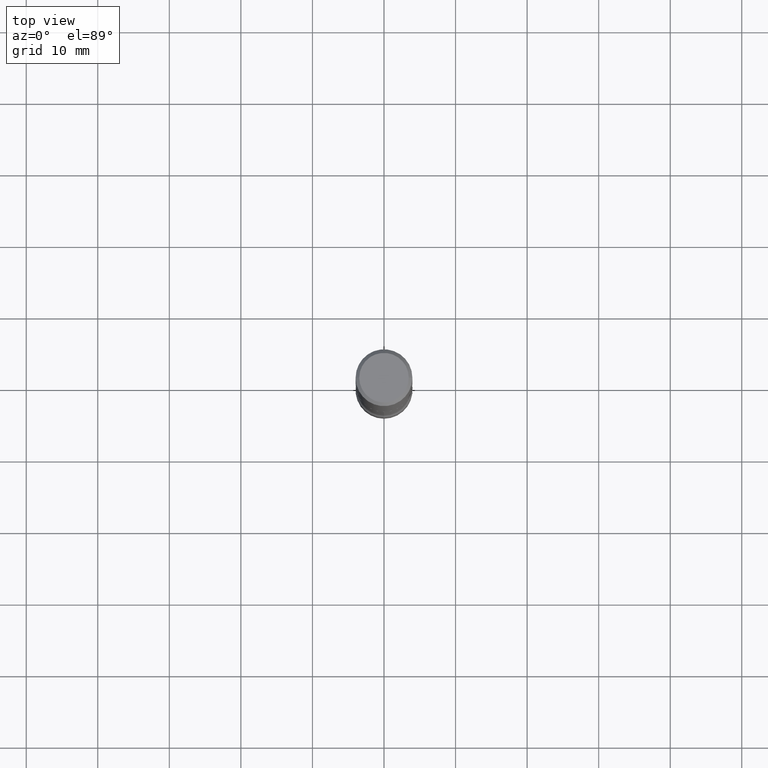
[diagram: clean part render]
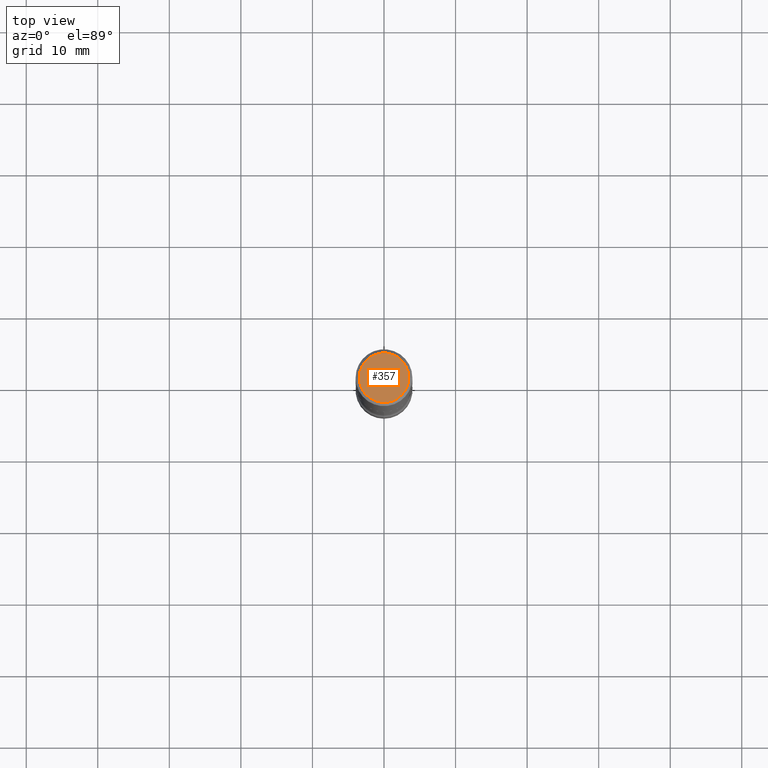
[diagram: same view with one face highlighted and labeled with its STEP entity id]
A machine part, top view. The second image highlights one B-rep face of the part: STEP entity #357.
In plain terms, the highlighted planar face has unit normal (0, -0, -1).
Its self-contained STEP definition (entity closure, byte-faithful):
#22 = ORIENTED_EDGE ( 'NONE', *, *, #151, .T. ) ;
#49 = DIRECTION ( 'NONE',  ( 1.000000000000000000, -6.982962677686266711E-15, 4.876388394912427736E-29 ) ) ;
#56 = DIRECTION ( 'NONE',  ( 1.000000000000000000, -6.982962677686266711E-15, 4.876388394912427736E-29 ) ) ;
#60 = DIRECTION ( 'NONE',  ( -2.445468806185136597E-29, 3.491481338843145583E-15, 1.000000000000000000 ) ) ;
#71 = VERTEX_POINT ( 'NONE', #118 ) ;
#76 = CARTESIAN_POINT ( 'NONE',  ( -0.1362499999999997602, 9.863434782231832402E-16, -1.280553747030800849E-17 ) ) ;
#110 = AXIS2_PLACEMENT_3D ( 'NONE', #247, #60, #49 ) ;
#118 = CARTESIAN_POINT ( 'NONE',  ( 0.1362499999999997602, -1.038262645562516547E-15, -1.280553747029427738E-17 ) ) ;
#137 = EDGE_LOOP ( 'NONE', ( #141, #22 ) ) ;
#138 = CIRCLE ( 'NONE', #110, 0.1362499999999997602 ) ;
#141 = ORIENTED_EDGE ( 'NONE', *, *, #398, .T. ) ;
#151 = EDGE_CURVE ( 'NONE', #71, #176, #138, .T. ) ;
#159 = PLANE ( 'NONE',  #193 ) ;
#176 = VERTEX_POINT ( 'NONE', #76 ) ;
#193 = AXIS2_PLACEMENT_3D ( 'NONE', #365, #287, #399 ) ;
#247 = CARTESIAN_POINT ( 'NONE',  ( 3.131554243005659264E-46, -4.471029511141341874E-32, -1.280553747030123384E-17 ) ) ;
#251 = CARTESIAN_POINT ( 'NONE',  ( 3.131554243005659264E-46, -4.471029511141341874E-32, -1.280553747030123384E-17 ) ) ;
#267 = AXIS2_PLACEMENT_3D ( 'NONE', #251, #405, #56 ) ;
#284 = FACE_OUTER_BOUND ( 'NONE', #137, .T. ) ;
#287 = DIRECTION ( 'NONE',  ( 2.438088387897960049E-29, -3.491481338843145188E-15, -1.000000000000000000 ) ) ;
#357 = ADVANCED_FACE ( 'NONE', ( #284 ), #159, .F. ) ;
#365 = CARTESIAN_POINT ( 'NONE',  ( 9.514286648347519855E-16, 0.1362499999999997602, -4.821171011525283091E-16 ) ) ;
#398 = EDGE_CURVE ( 'NONE', #176, #71, #479, .T. ) ;
#399 = DIRECTION ( 'NONE',  ( -1.000000000000000000, 6.982962677686265922E-15, -4.876176775795935793E-29 ) ) ;
#405 = DIRECTION ( 'NONE',  ( -2.445468806185136597E-29, 3.491481338843145583E-15, 1.000000000000000000 ) ) ;
#479 = CIRCLE ( 'NONE', #267, 0.1362499999999997602 ) ;